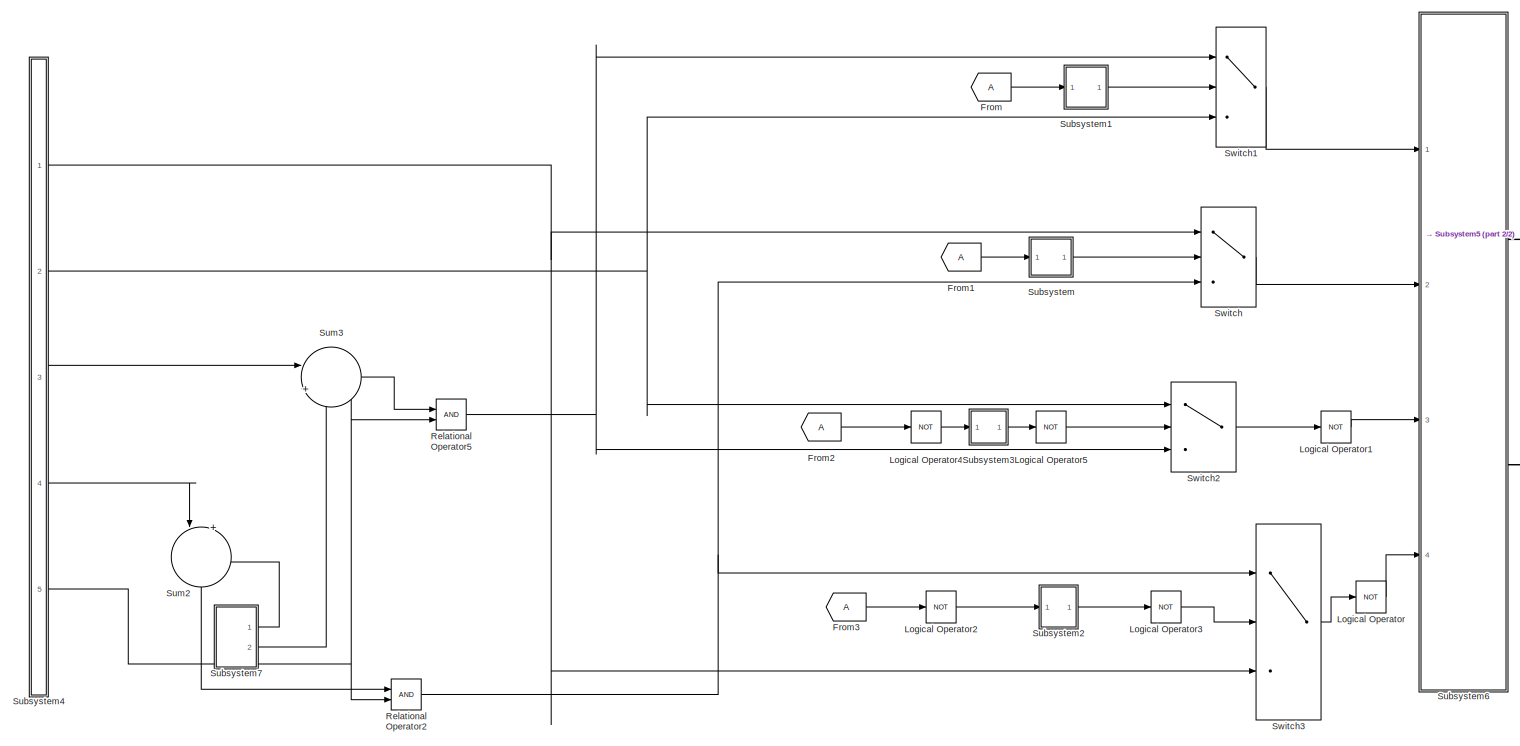
[diagram: root canvas - part 1/2, most of the canvas]
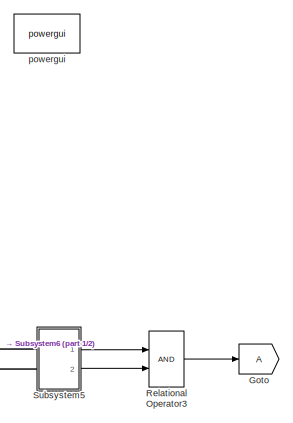
[diagram: root canvas - part 2/2, middle right region]
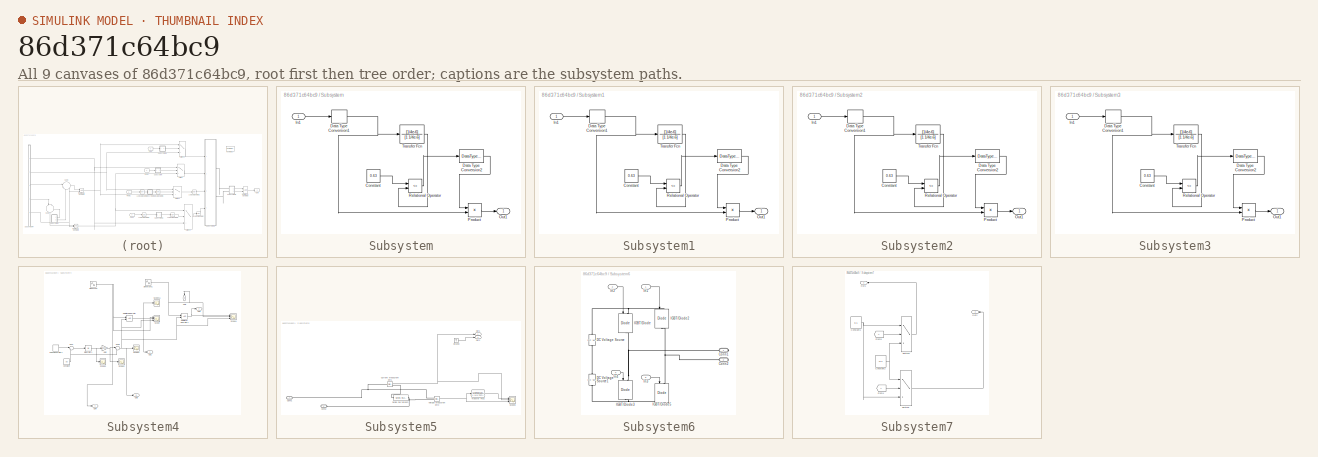
[diagram: thumbnail index - all 9 canvases of the model, root first then tree order]
MODEL slx_86d371c64bc9
KIND model
CONFIG AbsTol = auto
CONFIG EnableMultiTasking = off
CONFIG FixedStep = auto
CONFIG MaxStep = auto
CONFIG MinStep = auto
CONFIG RelTol = 1e-3
CONFIG SampleTimeConstraint = Unconstrained
CONFIG Solver = VariableStepAuto
CONFIG SolverName = VariableStepAuto
CONFIG StartTime = 0.0
CONFIG StopTime = 10.0
BLOCK [From] From
BLOCK [From] From1
BLOCK [From] From2
BLOCK [From] From3
BLOCK [Goto] Goto
BLOCK [Logic] Logical Operator
  AllPortsSameDT = off
  Inputs = 1
  Operator = NOT
  OutDataTypeStr = boolean
  Ports = [1, 1]
BLOCK [Logic] Logical Operator1
  AllPortsSameDT = off
  Inputs = 1
  Operator = NOT
  OutDataTypeStr = boolean
  Ports = [1, 1]
BLOCK [Logic] Logical Operator2
  AllPortsSameDT = off
  Inputs = 1
  Operator = NOT
  OutDataTypeStr = boolean
  Ports = [1, 1]
BLOCK [Logic] Logical Operator3
  AllPortsSameDT = off
  Inputs = 1
  Operator = NOT
  OutDataTypeStr = boolean
  Ports = [1, 1]
BLOCK [Logic] Logical Operator4
  AllPortsSameDT = off
  Inputs = 1
  Operator = NOT
  OutDataTypeStr = boolean
  Ports = [1, 1]
BLOCK [Logic] Logical Operator5
  AllPortsSameDT = off
  Inputs = 1
  Operator = NOT
  OutDataTypeStr = boolean
  Ports = [1, 1]
BLOCK [RelationalOperator] Relational Operator2
  InputSameDT = off
  OutDataTypeStr = boolean
  Ports = [2, 1]
BLOCK [RelationalOperator] Relational Operator3
  InputSameDT = off
  OutDataTypeStr = boolean
  Ports = [2, 1]
BLOCK [RelationalOperator] Relational Operator5
  InputSameDT = off
  OutDataTypeStr = boolean
  Ports = [2, 1]
BLOCK [SubSystem] Subsystem
  Ports = [1, 1]
  RequestExecContextInheritance = off
BLOCK [Constant] Subsystem/Constant
  Value = 0.63
BLOCK [DataTypeConversion] Subsystem/Data Type Conversion1
  OutDataTypeStr = double
  RndMeth = Floor
  SaturateOnIntegerOverflow = off
BLOCK [DataTypeConversion] Subsystem/Data Type Conversion2
  OutDataTypeStr = double
  RndMeth = Floor
  SaturateOnIntegerOverflow = off
BLOCK [Inport] Subsystem/In1
  IconDisplay = Port number
BLOCK [Outport] Subsystem/Out1
  IconDisplay = Port number
BLOCK [Product] Subsystem/Product
  InputSameDT = off
  OutDataTypeStr = Inherit: Inherit via internal rule
  Ports = [2, 1]
  RndMeth = Floor
  SaturateOnIntegerOverflow = off
BLOCK [RelationalOperator] Subsystem/Relational Operator
  InputSameDT = off
  Operator = <=
  OutDataTypeStr = boolean
  Ports = [2, 1]
BLOCK [TransferFcn] Subsystem/Transfer Fcn
  Denominator = [1 1/4e-6]
  Numerator = [1/4e-6]
BLOCK [SubSystem] Subsystem1
  Ports = [1, 1]
  RequestExecContextInheritance = off
BLOCK [Constant] Subsystem1/Constant
  Value = 0.63
BLOCK [DataTypeConversion] Subsystem1/Data Type Conversion1
  OutDataTypeStr = double
  RndMeth = Floor
  SaturateOnIntegerOverflow = off
BLOCK [DataTypeConversion] Subsystem1/Data Type Conversion2
  OutDataTypeStr = double
  RndMeth = Floor
  SaturateOnIntegerOverflow = off
BLOCK [Inport] Subsystem1/In1
  IconDisplay = Port number
BLOCK [Outport] Subsystem1/Out1
  IconDisplay = Port number
BLOCK [Product] Subsystem1/Product
  InputSameDT = off
  OutDataTypeStr = Inherit: Inherit via internal rule
  Ports = [2, 1]
  RndMeth = Floor
  SaturateOnIntegerOverflow = off
BLOCK [RelationalOperator] Subsystem1/Relational Operator
  InputSameDT = off
  Operator = <=
  OutDataTypeStr = boolean
  Ports = [2, 1]
BLOCK [TransferFcn] Subsystem1/Transfer Fcn
  Denominator = [1 1/4e-6]
  Numerator = [1/4e-6]
BLOCK [SubSystem] Subsystem2
  Ports = [1, 1]
  RequestExecContextInheritance = off
BLOCK [Constant] Subsystem2/Constant
  Value = 0.63
BLOCK [DataTypeConversion] Subsystem2/Data Type Conversion1
  OutDataTypeStr = double
  RndMeth = Floor
  SaturateOnIntegerOverflow = off
BLOCK [DataTypeConversion] Subsystem2/Data Type Conversion2
  OutDataTypeStr = double
  RndMeth = Floor
  SaturateOnIntegerOverflow = off
BLOCK [Inport] Subsystem2/In1
  IconDisplay = Port number
BLOCK [Outport] Subsystem2/Out1
  IconDisplay = Port number
BLOCK [Product] Subsystem2/Product
  InputSameDT = off
  OutDataTypeStr = Inherit: Inherit via internal rule
  Ports = [2, 1]
  RndMeth = Floor
  SaturateOnIntegerOverflow = off
BLOCK [RelationalOperator] Subsystem2/Relational Operator
  InputSameDT = off
  Operator = <=
  OutDataTypeStr = boolean
  Ports = [2, 1]
BLOCK [TransferFcn] Subsystem2/Transfer Fcn
  Denominator = [1 1/4e-6]
  Numerator = [1/4e-6]
BLOCK [SubSystem] Subsystem3
  Ports = [1, 1]
  RequestExecContextInheritance = off
BLOCK [Constant] Subsystem3/Constant
  Value = 0.63
BLOCK [DataTypeConversion] Subsystem3/Data Type Conversion1
  OutDataTypeStr = double
  RndMeth = Floor
  SaturateOnIntegerOverflow = off
BLOCK [DataTypeConversion] Subsystem3/Data Type Conversion2
  OutDataTypeStr = double
  RndMeth = Floor
  SaturateOnIntegerOverflow = off
BLOCK [Inport] Subsystem3/In1
  IconDisplay = Port number
BLOCK [Outport] Subsystem3/Out1
  IconDisplay = Port number
BLOCK [Product] Subsystem3/Product
  InputSameDT = off
  OutDataTypeStr = Inherit: Inherit via internal rule
  Ports = [2, 1]
  RndMeth = Floor
  SaturateOnIntegerOverflow = off
BLOCK [RelationalOperator] Subsystem3/Relational Operator
  InputSameDT = off
  Operator = <=
  OutDataTypeStr = boolean
  Ports = [2, 1]
BLOCK [TransferFcn] Subsystem3/Transfer Fcn
  Denominator = [1 1/4e-6]
  Numerator = [1/4e-6]
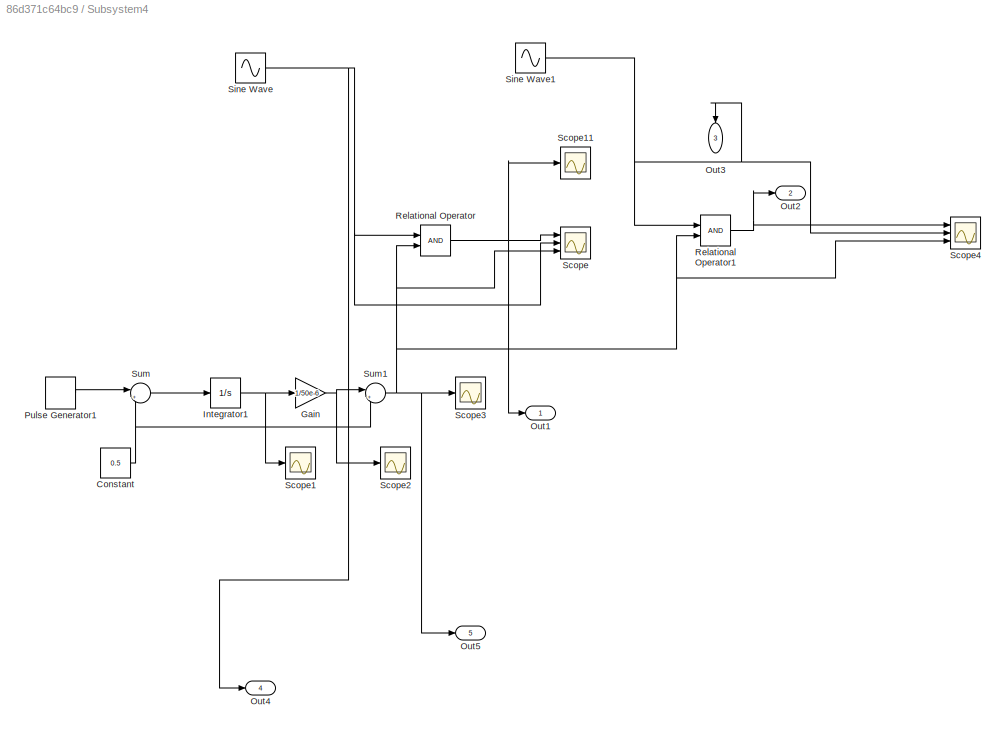
BLOCK [SubSystem] Subsystem4
  Ports = [0, 5]
  RequestExecContextInheritance = off
BLOCK [Constant] Subsystem4/Constant
  Value = 0.5
BLOCK [Gain] Subsystem4/Gain
  Gain = 1/50e-6
  OutDataTypeStr = Inherit: Inherit via internal rule
  ParamDataTypeStr = Inherit: Inherit via internal rule
  SaturateOnIntegerOverflow = off
BLOCK [Integrator] Subsystem4/Integrator1
  Ports = [1, 1]
BLOCK [Outport] Subsystem4/Out1
  IconDisplay = Port number
BLOCK [Outport] Subsystem4/Out2
  IconDisplay = Port number
  Port = 2
BLOCK [Outport] Subsystem4/Out3
  IconDisplay = Port number
  Port = 3
BLOCK [Outport] Subsystem4/Out4
  IconDisplay = Port number
  Port = 4
BLOCK [Outport] Subsystem4/Out5
  IconDisplay = Port number
  Port = 5
BLOCK [DiscretePulseGenerator] Subsystem4/Pulse Generator1
  Period = 200e-6
  Ports = [0, 1]
  PulseType = Time based
  PulseWidth = 50
BLOCK [RelationalOperator] Subsystem4/Relational Operator
  InputSameDT = off
  OutDataTypeStr = boolean
  Ports = [2, 1]
BLOCK [RelationalOperator] Subsystem4/Relational Operator1
  InputSameDT = off
  OutDataTypeStr = boolean
  Ports = [2, 1]
BLOCK [Scope] Subsystem4/Scope
  Floating = off
  NumInputPorts = 3
  Ports = [3]
  ScopeSpecificationString = C++SS(StrPVP('Location','[5, 49, 1371, 727]'),StrPVP('Open','off'),MxPVP('AxesTitles',53,'struct(''axes1'',''%<SignalLabel>'',''axes2'',''%<SignalLabel>'',''axes3'',''%<SignalLabel>'')'),MxPVP('ScopeGraphics',56,'struct(''FigureColor'',''[0.5 0.5 0.5]'',''AxesColor'',''[0 0 0]'',''AxesTickColor'',''[1 1 1]'',''LineColors'',''[1 1 0;1 0 1;0 1 1;1 0 0;0 1 0;0 0 1]'',''LineStyles'',''-|-|-|-|-|-'',''...<+298ch>
BLOCK [Scope] Subsystem4/Scope1
  Floating = off
  NumInputPorts = 1
  Ports = [1]
  ScopeSpecificationString = C++SS(StrPVP('Location','[1, 49, 1367, 727]'),StrPVP('Open','off'),MxPVP('AxesTitles',53,'struct(''axes1'',''%<SignalLabel>'')'),MxPVP('ScopeGraphics',56,'struct(''FigureColor'',''[0.5 0.5 0.5]'',''AxesColor'',''[0 0 0]'',''AxesTickColor'',''[1 1 1]'',''LineColors'',''[1 1 0;1 0 1;0 1 1;1 0 0;0 1 0;0 0 1]'',''LineStyles'',''-|-|-|-|-|-'',''LineWidths'',''[0.5 0.5 0.5 0.5 0.5 0.5]'',''MarkerStyles'...<+222ch>
BLOCK [Scope] Subsystem4/Scope11
  Floating = off
  NumInputPorts = 1
  Ports = [1]
  ScopeSpecificationString = C++SS(StrPVP('Location','[5, 49, 1371, 727]'),StrPVP('Open','off'),StrPVP('ZoomMode','xonly'),MxPVP('AxesTitles',53,'struct(''axes1'',''%<SignalLabel>'')'),MxPVP('ScopeGraphics',56,'struct(''FigureColor'',''[0.5 0.5 0.5]'',''AxesColor'',''[0 0 0]'',''AxesTickColor'',''[1 1 1]'',''LineColors'',''[1 1 0;1 0 1;0 1 1;1 0 0;0 1 0;0 0 1]'',''LineStyles'',''-|-|-|-|-|-'',''LineWidths'',''[0.5 0.5 0.5 0.5...<+338ch>
BLOCK [Scope] Subsystem4/Scope2
  Floating = off
  NumInputPorts = 1
  Ports = [1]
  ScopeSpecificationString = C++SS(StrPVP('Location','[5, 49, 1371, 727]'),StrPVP('Open','off'),StrPVP('ZoomMode','xonly'),MxPVP('AxesTitles',53,'struct(''axes1'',''%<SignalLabel>'')'),MxPVP('ScopeGraphics',56,'struct(''FigureColor'',''[0.5 0.5 0.5]'',''AxesColor'',''[0 0 0]'',''AxesTickColor'',''[1 1 1]'',''LineColors'',''[1 1 0;1 0 1;0 1 1;1 0 0;0 1 0;0 0 1]'',''LineStyles'',''-|-|-|-|-|-'',''LineWidths'',''[0.5 0.5 0.5 0.5...<+250ch>
BLOCK [Scope] Subsystem4/Scope3
  Floating = off
  NumInputPorts = 1
  Ports = [1]
  ScopeSpecificationString = C++SS(StrPVP('Location','[5, 49, 1371, 727]'),StrPVP('Open','off'),StrPVP('ZoomMode','xonly'),MxPVP('AxesTitles',53,'struct(''axes1'',''%<SignalLabel>'')'),MxPVP('ScopeGraphics',56,'struct(''FigureColor'',''[0.5 0.5 0.5]'',''AxesColor'',''[0 0 0]'',''AxesTickColor'',''[1 1 1]'',''LineColors'',''[1 1 0;1 0 1;0 1 1;1 0 0;0 1 0;0 0 1]'',''LineStyles'',''-|-|-|-|-|-'',''LineWidths'',''[0.5 0.5 0.5 0.5...<+250ch>
BLOCK [Scope] Subsystem4/Scope4
  Floating = off
  NumInputPorts = 3
  Ports = [3]
  ScopeSpecificationString = C++SS(StrPVP('Location','[1, 49, 1367, 727]'),StrPVP('Open','off'),MxPVP('AxesTitles',53,'struct(''axes1'',''%<SignalLabel>'',''axes2'',''%<SignalLabel>'',''axes3'',''%<SignalLabel>'')'),MxPVP('ScopeGraphics',56,'struct(''FigureColor'',''[0.5 0.5 0.5]'',''AxesColor'',''[0 0 0]'',''AxesTickColor'',''[1 1 1]'',''LineColors'',''[1 1 0;1 0 1;0 1 1;1 0 0;0 1 0;0 0 1]'',''LineStyles'',''-|-|-|-|-|-'',''...<+329ch>
BLOCK [Sin] Subsystem4/Sine Wave
  Amplitude = 0.4
  Frequency = 2*pi*50
  Ports = [0, 1]
  SampleTime = 0
BLOCK [Sin] Subsystem4/Sine Wave1
  Amplitude = 0.4
  Frequency = 2*pi*50
  Phase = pi
  Ports = [0, 1]
  SampleTime = 0
BLOCK [Sum] Subsystem4/Sum
  IconShape = round
  InputSameDT = off
  Inputs = |+-
  OutDataTypeStr = Inherit: Inherit via internal rule
  Ports = [2, 1]
  SaturateOnIntegerOverflow = off
BLOCK [Sum] Subsystem4/Sum1
  IconShape = round
  InputSameDT = off
  Inputs = |+-
  OutDataTypeStr = Inherit: Inherit via internal rule
  Ports = [2, 1]
  SaturateOnIntegerOverflow = off
BLOCK [SubSystem] Subsystem5
  Ports = [0, 2, 0, 0, 0, 2]
  RequestExecContextInheritance = off
BLOCK [PMIOPort] Subsystem5/Conn1
  Side = Left
BLOCK [PMIOPort] Subsystem5/Conn2
  Port = 2
  Side = Left
BLOCK [Reference] Subsystem5/Current Measurement1  REF=powerlib/Measurements/Current Measurement
  Ports = [0, 1, 0, 0, 0, 1, 1]
  SourceBlock = powerlib/Measurements/Current Measurement
  SourceProductBaseCode = PS
  SourceProductName = Simscape Electrical
  SourceType = Current Measurement
  UserDataPersistent = on
BLOCK [Ground] Subsystem5/Ground
BLOCK [Outport] Subsystem5/Out1
  IconDisplay = Port number
BLOCK [Outport] Subsystem5/Out2
  IconDisplay = Port number
  Port = 2
BLOCK [Scope] Subsystem5/Scope8
  Floating = off
  NumInputPorts = 3
  Ports = [3]
  ScopeSpecificationString = Simulink.scopes.TimeScopeBlockCfg('CurrentConfiguration', extmgr.ConfigurationSet(extmgr.Configuration('Core','General UI',true),extmgr.Configuration('Core','Source UI',true),extmgr.Configuration('Sources','WiredSimulink',true,'DataLoggingVariableName','ScopeData8','DataLoggingSaveFormat','Array','DataLoggingDecimation','1','DataLoggingDecimateData',true),extmgr.Configuration('Visuals','Time Domai...<+3156ch>
BLOCK [Reference] Subsystem5/Series RLC Branch  REF=powerlib/Elements/Series RLC Branch
  Ports = [0, 0, 0, 0, 0, 1, 1]
  SourceBlock = powerlib/Elements/Series RLC Branch
  SourceProductBaseCode = PS
  SourceProductName = Simscape Electrical
  SourceType = Series RLC Branch
BLOCK [TransferFcn] Subsystem5/Transfer Fcn2
  Denominator = [1 (1/0.707)*2*pi*50*15 (2*pi*50*15)^2]
  Numerator = [(2*pi*50*15)^2]
BLOCK [Reference] Subsystem5/Voltage Measurement3  REF=powerlib/Measurements/Voltage Measurement
  Ports = [0, 1, 0, 0, 0, 2]
  SourceBlock = powerlib/Measurements/Voltage Measurement
  SourceProductBaseCode = PS
  SourceProductName = Simscape Electrical
  SourceType = Voltage Measurement
  UserDataPersistent = on
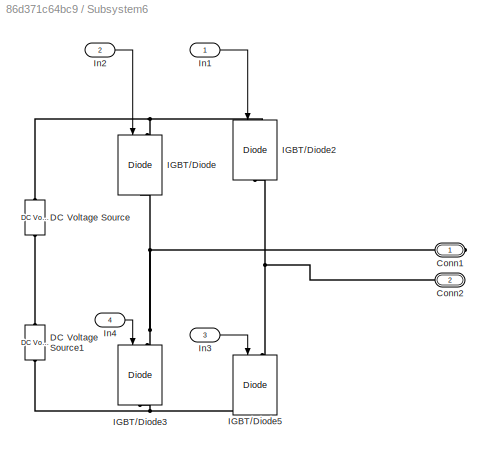
BLOCK [SubSystem] Subsystem6
  Ports = [4, 0, 0, 0, 0, 0, 2]
  RequestExecContextInheritance = off
BLOCK [PMIOPort] Subsystem6/Conn1
  Side = Right
BLOCK [PMIOPort] Subsystem6/Conn2
  Port = 2
  Side = Right
BLOCK [Reference] Subsystem6/DC Voltage Source  REF=powerlib/Electrical
Sources/DC Voltage Source
  Ports = [0, 0, 0, 0, 0, 1, 1]
  SourceBlock = powerlib/Electrical\nSources/DC Voltage Source
  SourceProductBaseCode = PS
  SourceProductName = Simscape Electrical
  SourceType = DC Voltage Source
BLOCK [Reference] Subsystem6/DC Voltage Source1  REF=powerlib/Electrical
Sources/DC Voltage Source
  Ports = [0, 0, 0, 0, 0, 1, 1]
  SourceBlock = powerlib/Electrical\nSources/DC Voltage Source
  SourceProductBaseCode = PS
  SourceProductName = Simscape Electrical
  SourceType = DC Voltage Source
BLOCK [Reference] Subsystem6/IGBT//Diode  REF=powerlib/Power
Electronics/IGBT//Diode
  Ports = [1, 0, 0, 0, 0, 1, 1]
  SourceBlock = powerlib/Power\nElectronics/IGBT//Diode
  SourceProductBaseCode = PS
  SourceProductName = Simscape Electrical
  SourceType = IGBT/Diode
BLOCK [Reference] Subsystem6/IGBT//Diode2  REF=powerlib/Power
Electronics/IGBT//Diode
  Ports = [1, 0, 0, 0, 0, 1, 1]
  SourceBlock = powerlib/Power\nElectronics/IGBT//Diode
  SourceProductBaseCode = PS
  SourceProductName = Simscape Electrical
  SourceType = IGBT/Diode
BLOCK [Reference] Subsystem6/IGBT//Diode3  REF=powerlib/Power
Electronics/IGBT//Diode
  Ports = [1, 0, 0, 0, 0, 1, 1]
  SourceBlock = powerlib/Power\nElectronics/IGBT//Diode
  SourceProductBaseCode = PS
  SourceProductName = Simscape Electrical
  SourceType = IGBT/Diode
BLOCK [Reference] Subsystem6/IGBT//Diode5  REF=powerlib/Power
Electronics/IGBT//Diode
  Ports = [1, 0, 0, 0, 0, 1, 1]
  SourceBlock = powerlib/Power\nElectronics/IGBT//Diode
  SourceProductBaseCode = PS
  SourceProductName = Simscape Electrical
  SourceType = IGBT/Diode
BLOCK [Inport] Subsystem6/In1
  IconDisplay = Port number
BLOCK [Inport] Subsystem6/In2
  IconDisplay = Port number
  Port = 2
BLOCK [Inport] Subsystem6/In3
  IconDisplay = Port number
  Port = 3
BLOCK [Inport] Subsystem6/In4
  IconDisplay = Port number
  Port = 4
BLOCK [SubSystem] Subsystem7
  Ports = [0, 2]
  RequestExecContextInheritance = off
BLOCK [Constant] Subsystem7/Constant1
  Value = 0.1
BLOCK [Constant] Subsystem7/Constant2
  Value = -0.1
BLOCK [From] Subsystem7/From4
BLOCK [From] Subsystem7/From5
BLOCK [Outport] Subsystem7/Out1
  IconDisplay = Port number
BLOCK [Outport] Subsystem7/Out2
  IconDisplay = Port number
  Port = 2
BLOCK [Switch] Subsystem7/Switch4
  Criteria = u2 > Threshold
  InputSameDT = off
  SaturateOnIntegerOverflow = off
BLOCK [Switch] Subsystem7/Switch5
  Criteria = u2 > Threshold
  InputSameDT = off
  SaturateOnIntegerOverflow = off
BLOCK [Sum] Sum2
  IconShape = round
  InputSameDT = off
  Inputs = |++
  OutDataTypeStr = Inherit: Inherit via internal rule
  Ports = [2, 1]
  SaturateOnIntegerOverflow = off
BLOCK [Sum] Sum3
  IconShape = round
  InputSameDT = off
  Inputs = |++
  OutDataTypeStr = Inherit: Inherit via internal rule
  Ports = [2, 1]
  SaturateOnIntegerOverflow = off
BLOCK [Switch] Switch
  Criteria = u2 > Threshold
  InputSameDT = off
  SaturateOnIntegerOverflow = off
BLOCK [Switch] Switch1
  Criteria = u2 > Threshold
  InputSameDT = off
  SaturateOnIntegerOverflow = off
BLOCK [Switch] Switch2
  Criteria = u2 > Threshold
  InputSameDT = off
  SaturateOnIntegerOverflow = off
BLOCK [Switch] Switch3
  Criteria = u2 > Threshold
  InputSameDT = off
  SaturateOnIntegerOverflow = off
BLOCK [Reference] powergui  REF=powerlib/powergui
  Ports = []
  Priority = 1
  SourceBlock = powerlib/powergui
  SourceProductBaseCode = PS
  SourceProductName = Simscape Electrical
  SourceType = PSB option menu block
LINE From1:1 -> Subsystem:1
LINE From2:1 -> Logical Operator4:1
LINE From3:1 -> Logical Operator2:1
LINE From:1 -> Subsystem1:1
LINE Logical Operator1:1 -> Subsystem6:3
LINE Logical Operator2:1 -> Subsystem2:1
LINE Logical Operator3:1 -> Switch3:2
LINE Logical Operator4:1 -> Subsystem3:1
LINE Logical Operator5:1 -> Switch2:2
LINE Logical Operator:1 -> Subsystem6:4
NET Relational Operator2:1 -> Switch3:1, Switch:3
LINE Relational Operator3:1 -> Goto:1
NET Relational Operator5:1 -> Switch1:1, Switch2:3
LINE Subsystem/Constant:1 -> Subsystem/Relational Operator:1
NET Subsystem/Data Type Conversion1:1 -> Subsystem/Product:2, Subsystem/Transfer Fcn:1
LINE Subsystem/Data Type Conversion2:1 -> Subsystem/Product:1
LINE Subsystem/In1:1 -> Subsystem/Data Type Conversion1:1
LINE Subsystem/Product:1 -> Subsystem/Out1:1
LINE Subsystem/Relational Operator:1 -> Subsystem/Data Type Conversion2:1
LINE Subsystem/Transfer Fcn:1 -> Subsystem/Relational Operator:2
LINE Subsystem1/Constant:1 -> Subsystem1/Relational Operator:1
NET Subsystem1/Data Type Conversion1:1 -> Subsystem1/Product:2, Subsystem1/Transfer Fcn:1
LINE Subsystem1/Data Type Conversion2:1 -> Subsystem1/Product:1
LINE Subsystem1/In1:1 -> Subsystem1/Data Type Conversion1:1
LINE Subsystem1/Product:1 -> Subsystem1/Out1:1
LINE Subsystem1/Relational Operator:1 -> Subsystem1/Data Type Conversion2:1
LINE Subsystem1/Transfer Fcn:1 -> Subsystem1/Relational Operator:2
LINE Subsystem1:1 -> Switch1:2
LINE Subsystem2/Constant:1 -> Subsystem2/Relational Operator:1
NET Subsystem2/Data Type Conversion1:1 -> Subsystem2/Product:2, Subsystem2/Transfer Fcn:1
LINE Subsystem2/Data Type Conversion2:1 -> Subsystem2/Product:1
LINE Subsystem2/In1:1 -> Subsystem2/Data Type Conversion1:1
LINE Subsystem2/Product:1 -> Subsystem2/Out1:1
LINE Subsystem2/Relational Operator:1 -> Subsystem2/Data Type Conversion2:1
LINE Subsystem2/Transfer Fcn:1 -> Subsystem2/Relational Operator:2
LINE Subsystem2:1 -> Logical Operator3:1
LINE Subsystem3/Constant:1 -> Subsystem3/Relational Operator:1
NET Subsystem3/Data Type Conversion1:1 -> Subsystem3/Product:2, Subsystem3/Transfer Fcn:1
LINE Subsystem3/Data Type Conversion2:1 -> Subsystem3/Product:1
LINE Subsystem3/In1:1 -> Subsystem3/Data Type Conversion1:1
LINE Subsystem3/Product:1 -> Subsystem3/Out1:1
LINE Subsystem3/Relational Operator:1 -> Subsystem3/Data Type Conversion2:1
LINE Subsystem3/Transfer Fcn:1 -> Subsystem3/Relational Operator:2
LINE Subsystem3:1 -> Logical Operator5:1
NET Subsystem4/Constant:1 -> Subsystem4/Sum1:2, Subsystem4/Sum:2
NET Subsystem4/Gain:1 -> Subsystem4/Scope2:1, Subsystem4/Sum1:1
NET Subsystem4/Integrator1:1 -> Subsystem4/Gain:1, Subsystem4/Scope1:1
LINE Subsystem4/Pulse Generator1:1 -> Subsystem4/Sum:1
NET Subsystem4/Relational Operator1:1 -> Subsystem4/Out2:1, Subsystem4/Scope4:1
NET Subsystem4/Relational Operator:1 -> Subsystem4/Out1:1, Subsystem4/Scope11:1, Subsystem4/Scope:1
NET Subsystem4/Sine Wave1:1 -> Subsystem4/Out3:1, Subsystem4/Relational Operator1:1, Subsystem4/Scope4:2
NET Subsystem4/Sine Wave:1 -> Subsystem4/Out4:1, Subsystem4/Relational Operator:1, Subsystem4/Scope:2
NET Subsystem4/Sum1:1 -> Subsystem4/Out5:1, Subsystem4/Relational Operator1:2, Subsystem4/Relational Operator:2, Subsystem4/Scope3:1, Subsystem4/Scope4:3, Subsystem4/Scope:3
LINE Subsystem4/Sum:1 -> Subsystem4/Integrator1:1
NET Subsystem4:1 -> Switch3:3, Switch:1
NET Subsystem4:2 -> Switch1:3, Switch2:1
LINE Subsystem4:3 -> Sum3:1
LINE Subsystem4:4 -> Sum2:1
NET Subsystem4:5 -> Relational Operator2:2, Relational Operator5:2
NET Subsystem5/Current Measurement1:1 -> Subsystem5/Out1:1, Subsystem5/Scope8:2
LINE Subsystem5/Ground:1 -> Subsystem5/Out2:1
LINE Subsystem5/Transfer Fcn2:1 -> Subsystem5/Scope8:1
NET Subsystem5/Voltage Measurement3:1 -> Subsystem5/Scope8:3, Subsystem5/Transfer Fcn2:1
LINE Subsystem5:1 -> Relational Operator3:1
LINE Subsystem5:2 -> Relational Operator3:2
LINE Subsystem6/In1:1 -> Subsystem6/IGBT//Diode2:1
LINE Subsystem6/In2:1 -> Subsystem6/IGBT//Diode:1
LINE Subsystem6/In3:1 -> Subsystem6/IGBT//Diode5:1
LINE Subsystem6/In4:1 -> Subsystem6/IGBT//Diode3:1
NET Subsystem7/Constant1:1 -> Subsystem7/Switch4:1, Subsystem7/Switch5:3
NET Subsystem7/Constant2:1 -> Subsystem7/Switch4:3, Subsystem7/Switch5:1
LINE Subsystem7/From4:1 -> Subsystem7/Switch5:2
LINE Subsystem7/From5:1 -> Subsystem7/Switch4:2
LINE Subsystem7/Switch4:1 -> Subsystem7/Out1:1
LINE Subsystem7/Switch5:1 -> Subsystem7/Out2:1
LINE Subsystem7:1 -> Sum2:2
LINE Subsystem7:2 -> Sum3:2
LINE Subsystem:1 -> Switch:2
LINE Sum2:1 -> Relational Operator2:1
LINE Sum3:1 -> Relational Operator5:1
LINE Switch1:1 -> Subsystem6:1
LINE Switch2:1 -> Logical Operator1:1
LINE Switch3:1 -> Logical Operator:1
LINE Switch:1 -> Subsystem6:2
PNET net1: Subsystem5/Conn1:RConn1 -- Subsystem5/Current Measurement1:LConn1 -- Subsystem5/Voltage Measurement3:LConn1
PNET net2: Subsystem5/Conn2:RConn1 -- Subsystem5/Series RLC Branch:RConn1 -- Subsystem5/Voltage Measurement3:LConn2
PLINE Subsystem5/Current Measurement1:RConn1 -- Subsystem5/Series RLC Branch:LConn1
PLINE Subsystem5:LConn1 -- Subsystem6:RConn1
PLINE Subsystem5:LConn2 -- Subsystem6:RConn2
PNET net3: Subsystem6/Conn1:RConn1 -- Subsystem6/IGBT//Diode3:LConn1 -- Subsystem6/IGBT//Diode:RConn1
PNET net4: Subsystem6/Conn2:RConn1 -- Subsystem6/IGBT//Diode2:RConn1 -- Subsystem6/IGBT//Diode5:LConn1
PNET net5: Subsystem6/DC Voltage Source1:LConn1 -- Subsystem6/IGBT//Diode3:RConn1 -- Subsystem6/IGBT//Diode5:RConn1
PLINE Subsystem6/DC Voltage Source1:RConn1 -- Subsystem6/DC Voltage Source:LConn1
PNET net6: Subsystem6/DC Voltage Source:RConn1 -- Subsystem6/IGBT//Diode2:LConn1 -- Subsystem6/IGBT//Diode:LConn1
note: NET lines group one-source signal fan-out (src -> all destinations, sorted); 1:1 wires keep LINE; PNET lines group multi-terminal physical nets as a canonical sorted terminal list (undirected conserving connections); 2-terminal nets keep the pairwise PLINE form
